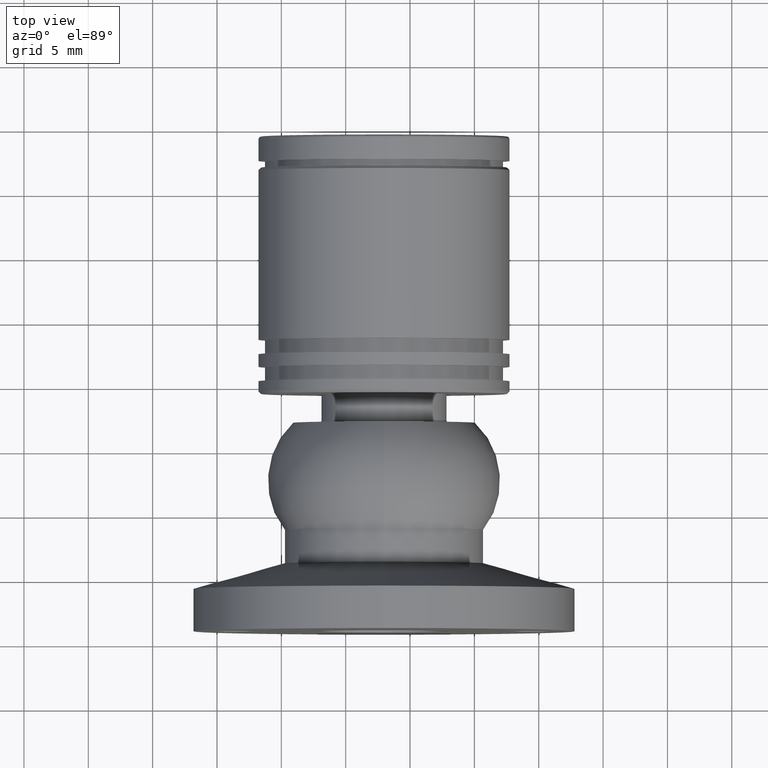
[diagram: clean part render]
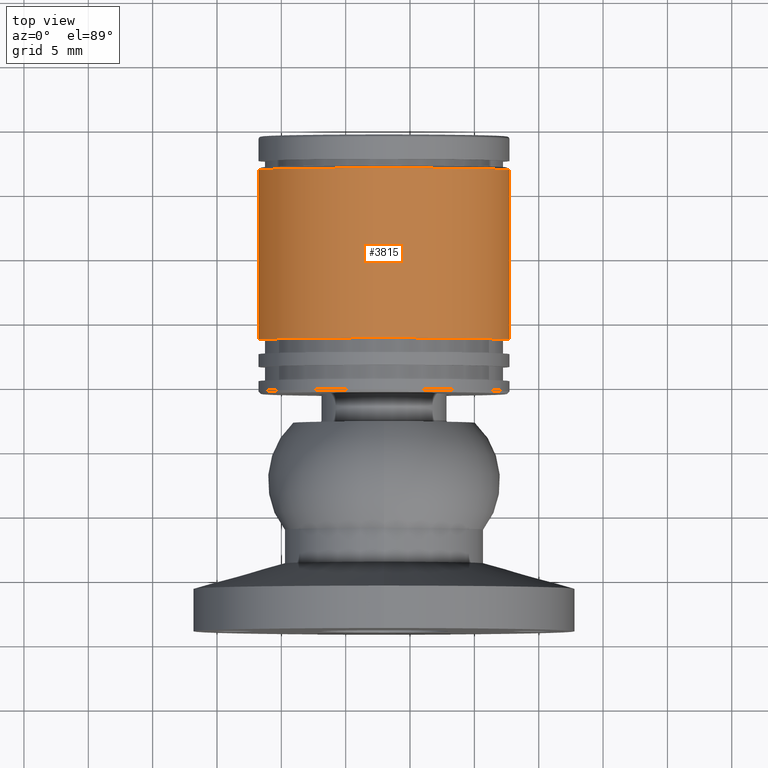
[diagram: same view with one face highlighted and labeled with its STEP entity id]
A machine part, top view. The second image highlights one B-rep face of the part: STEP entity #3815.
In plain terms, the highlighted cylindrical surface (partial cylindrical patch) has radius 9.75 mm, axis along (0, -1, 0).
Its self-contained STEP definition (entity closure, byte-faithful):
#307 = DIRECTION ( 'NONE',  ( 1.000000000000000000, 0.000000000000000000, 0.000000000000000000 ) ) ;
#625 = AXIS2_PLACEMENT_3D ( 'NONE', #5564, #2648, #4998 ) ;
#942 = DIRECTION ( 'NONE',  ( -7.981960134247561340E-20, -1.000000000000000000, -0.000000000000000000 ) ) ;
#943 = AXIS2_PLACEMENT_3D ( 'NONE', #9035, #942, #2369 ) ;
#1013 = CARTESIAN_POINT ( 'NONE',  ( 9.750000000000000000, 7.104649116487930652E-15, 0.000000000000000000 ) ) ;
#1656 = CARTESIAN_POINT ( 'NONE',  ( -9.750000000000010658, 23.16934397916142174, 1.194030629168670061E-15 ) ) ;
#2111 = EDGE_CURVE ( 'NONE', #4125, #7418, #7976, .T. ) ;
#2246 = EDGE_CURVE ( 'NONE', #5317, #7418, #2728, .T. ) ;
#2254 = FACE_OUTER_BOUND ( 'NONE', #7981, .T. ) ;
#2369 = DIRECTION ( 'NONE',  ( 1.000000000000000000, 0.000000000000000000, 0.000000000000000000 ) ) ;
#2648 = DIRECTION ( 'NONE',  ( -7.981960134060291135E-20, -1.000000000000000000, -0.000000000000000000 ) ) ;
#2728 = CIRCLE ( 'NONE', #8499, 9.750000000000005329 ) ;
#3013 = CIRCLE ( 'NONE', #943, 9.750000000000005329 ) ;
#3053 = CARTESIAN_POINT ( 'NONE',  ( -9.750000000000010658, 7.106205598714073854E-15, 1.194030629168670061E-15 ) ) ;
#3815 = ADVANCED_FACE ( 'NONE', ( #2254 ), #7505, .T. ) ;
#3845 = CARTESIAN_POINT ( 'NONE',  ( 9.750000000000000000, 9.969343979161408242, 0.000000000000000000 ) ) ;
#3931 = CARTESIAN_POINT ( 'NONE',  ( -5.328274769138707494E-15, 9.969343979161408242, 0.000000000000000000 ) ) ;
#4101 = ORIENTED_EDGE ( 'NONE', *, *, #5320, .T. ) ;
#4125 = VERTEX_POINT ( 'NONE', #1656 ) ;
#4128 = CARTESIAN_POINT ( 'NONE',  ( -9.750000000000010658, 9.969343979161408242, 1.194030629168670061E-15 ) ) ;
#4666 = VECTOR ( 'NONE', #7470, 1000.000000000000000 ) ;
#4890 = CARTESIAN_POINT ( 'NONE',  ( 9.750000000000000000, 23.16934397916142174, 0.000000000000000000 ) ) ;
#4998 = DIRECTION ( 'NONE',  ( 1.000000000000000000, -7.981960134067063186E-20, 0.000000000000000000 ) ) ;
#5317 = VERTEX_POINT ( 'NONE', #3845 ) ;
#5320 = EDGE_CURVE ( 'NONE', #9357, #4125, #3013, .T. ) ;
#5541 = ORIENTED_EDGE ( 'NONE', *, *, #2246, .F. ) ;
#5564 = CARTESIAN_POINT ( 'NONE',  ( -5.329070518200751394E-15, 7.105427357601001859E-15, 0.000000000000000000 ) ) ;
#6120 = DIRECTION ( 'NONE',  ( -7.981960134060291135E-20, -1.000000000000000000, -0.000000000000000000 ) ) ;
#7143 = ORIENTED_EDGE ( 'NONE', *, *, #7706, .F. ) ;
#7227 = VECTOR ( 'NONE', #6120, 1000.000000000000000 ) ;
#7418 = VERTEX_POINT ( 'NONE', #4128 ) ;
#7470 = DIRECTION ( 'NONE',  ( -7.981960134060291135E-20, -1.000000000000000000, -0.000000000000000000 ) ) ;
#7505 = CYLINDRICAL_SURFACE ( 'NONE', #625, 9.750000000000005329 ) ;
#7706 = EDGE_CURVE ( 'NONE', #9357, #5317, #9158, .T. ) ;
#7976 = LINE ( 'NONE', #3053, #4666 ) ;
#7981 = EDGE_LOOP ( 'NONE', ( #4101, #9048, #5541, #7143 ) ) ;
#8499 = AXIS2_PLACEMENT_3D ( 'NONE', #3931, #9060, #307 ) ;
#9035 = CARTESIAN_POINT ( 'NONE',  ( -5.327221150401011529E-15, 23.16934397916142174, 0.000000000000000000 ) ) ;
#9048 = ORIENTED_EDGE ( 'NONE', *, *, #2111, .T. ) ;
#9060 = DIRECTION ( 'NONE',  ( -7.981960134060291135E-20, -1.000000000000000000, -0.000000000000000000 ) ) ;
#9158 = LINE ( 'NONE', #1013, #7227 ) ;
#9357 = VERTEX_POINT ( 'NONE', #4890 ) ;